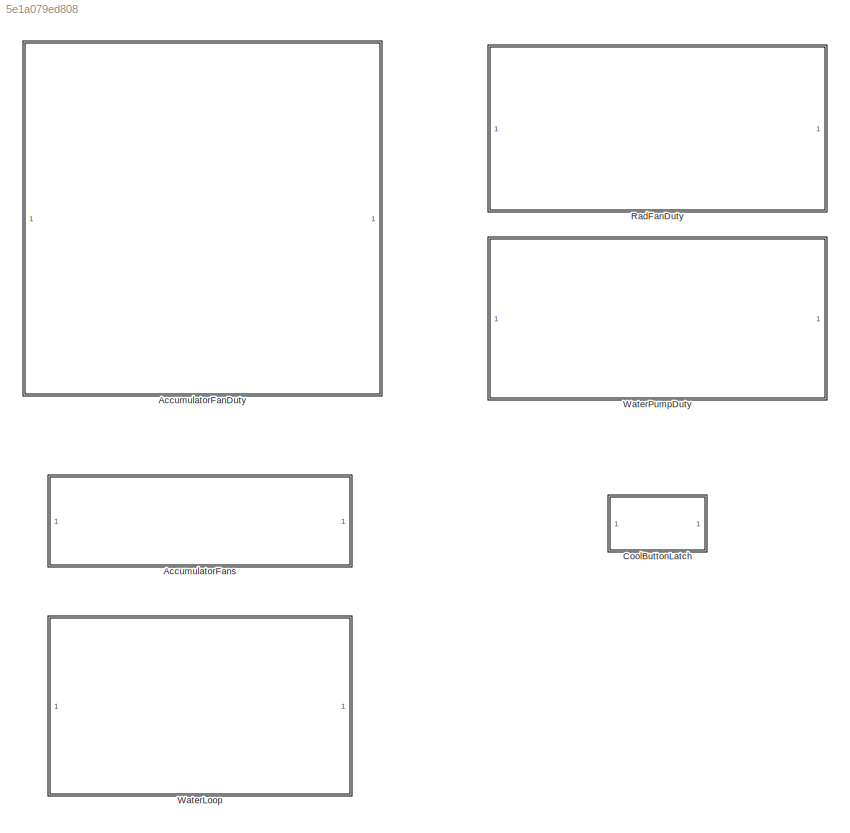
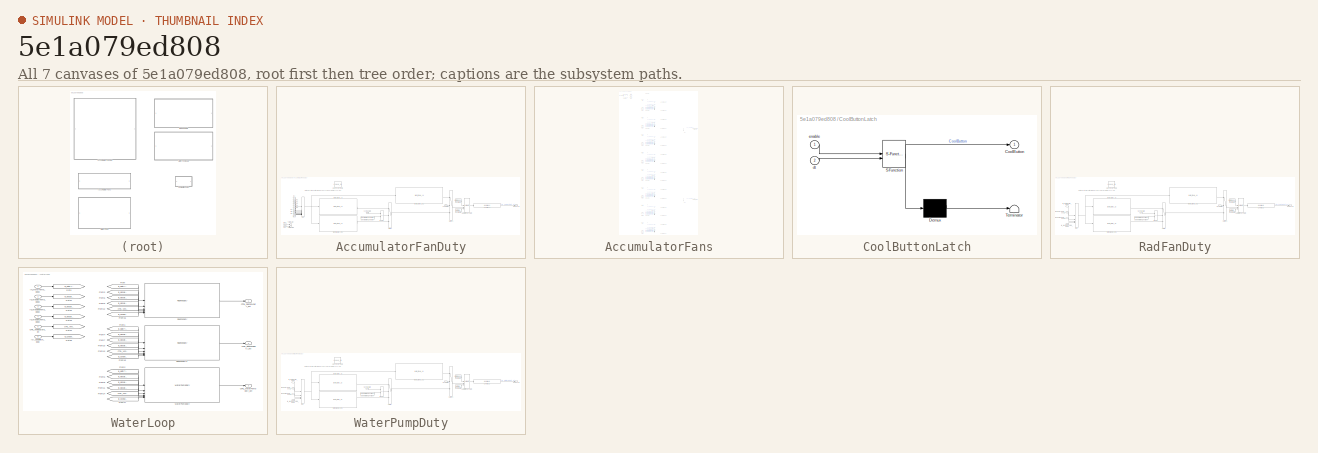
[diagram: thumbnail index - all 7 canvases of the model, root first then tree order]
MODEL slx_5e1a079ed808
KIND library
CONFIG AbsTol = auto
CONFIG EnableMultiTasking = off
CONFIG FixedStep = auto
CONFIG MaxStep = auto
CONFIG MinStep = auto
CONFIG RelTol = 1e-3
CONFIG SampleTimeConstraint = Unconstrained
CONFIG SolverName = VariableStepAuto
CONFIG StartTime = 0.0
CONFIG StopTime = 10.0
BLOCK [SubSystem] AccumulatorFanDuty
BLOCK [Lookup_n-D] AccumulatorFanDuty/1-D Lookup Table
  BreakpointsForDimension1 = [0:100]
  Commented = on
  InputPortMap = u0
  InternalRulePriority = Speed
  NumberOfTableDimensions = 1
  RndMeth = Simplest
  Table = min(((tanh(([0:100]-40)/20)*50+50).^1.03),100)
BLOCK [Constant] AccumulatorFanDuty/Constant
  Value = uint8(100)
BLOCK [Constant] AccumulatorFanDuty/Constant1
  Value = uint8(0)
BLOCK [Inport] AccumulatorFanDuty/CoolSwitch
  Port = 14
BLOCK [Outport] AccumulatorFanDuty/DutyCycle
BLOCK [Reference] AccumulatorFanDuty/Enumerated Constant  REF=simulink/Sources/Enumerated
Constant
  SourceBlock = simulink/Sources/Enumerated\nConstant
  SourceType = Enumerated Constant
BLOCK [RelationalOperator] AccumulatorFanDuty/Equal
  InputSameDT = off
  Operator = ==
  OutDataTypeStr = boolean
  RndMeth = Simplest
BLOCK [Inport] AccumulatorFanDuty/In1
BLOCK [Inport] AccumulatorFanDuty/In10
  Port = 10
BLOCK [Inport] AccumulatorFanDuty/In11
  Port = 11
BLOCK [Inport] AccumulatorFanDuty/In12
  Port = 12
BLOCK [Inport] AccumulatorFanDuty/In2
  Port = 2
BLOCK [Inport] AccumulatorFanDuty/In3
  Port = 3
BLOCK [Inport] AccumulatorFanDuty/In4
  Port = 4
BLOCK [Inport] AccumulatorFanDuty/In5
  Port = 5
BLOCK [Inport] AccumulatorFanDuty/In6
  Port = 6
BLOCK [Inport] AccumulatorFanDuty/In7
  Port = 7
BLOCK [Inport] AccumulatorFanDuty/In8
  Port = 8
BLOCK [Inport] AccumulatorFanDuty/In9
  Port = 9
BLOCK [MinMax] AccumulatorFanDuty/Max
  Function = max
  Inputs = 10
BLOCK [Reference] AccumulatorFanDuty/OverMeas  REF=Utilities/OverMeas
  SourceBlock = Utilities/OverMeas
BLOCK [Reference] AccumulatorFanDuty/Saturation Dynamic  REF=simulink/Discontinuities/Saturation
Dynamic
  SourceBlock = simulink/Discontinuities/Saturation\nDynamic
  SourceType = Saturation Dynamic
BLOCK [Switch] AccumulatorFanDuty/Switch
  Criteria = u2 ~= 0
  InputSameDT = off
  SaturateOnIntegerOverflow = off
BLOCK [Switch] AccumulatorFanDuty/Switch1
  Criteria = u2 ~= 0
  InputSameDT = off
  SaturateOnIntegerOverflow = off
BLOCK [Terminator] AccumulatorFanDuty/Terminator
BLOCK [Terminator] AccumulatorFanDuty/Terminator1
BLOCK [Inport] AccumulatorFanDuty/VehicleState
  Port = 13
BLOCK [Reference] AccumulatorFanDuty/raptor_table_1d  REF=Raptor_lib/Table Lookup/raptor_table_1d
  SourceBlock = Raptor_lib/Table Lookup/raptor_table_1d
  SourceProductName = Raptor
  SourceType = Table 1d
BLOCK [Reference] AccumulatorFanDuty/raptor_table_1d1  REF=Raptor_lib/Table Lookup/raptor_table_1d
  SourceBlock = Raptor_lib/Table Lookup/raptor_table_1d
  SourceProductName = Raptor
  SourceType = Table 1d
BLOCK [Reference] AccumulatorFanDuty/raptor_table_1d2  REF=Raptor_lib/Table Lookup/raptor_table_1d
  SourceBlock = Raptor_lib/Table Lookup/raptor_table_1d
  SourceProductName = Raptor
  SourceType = Table 1d
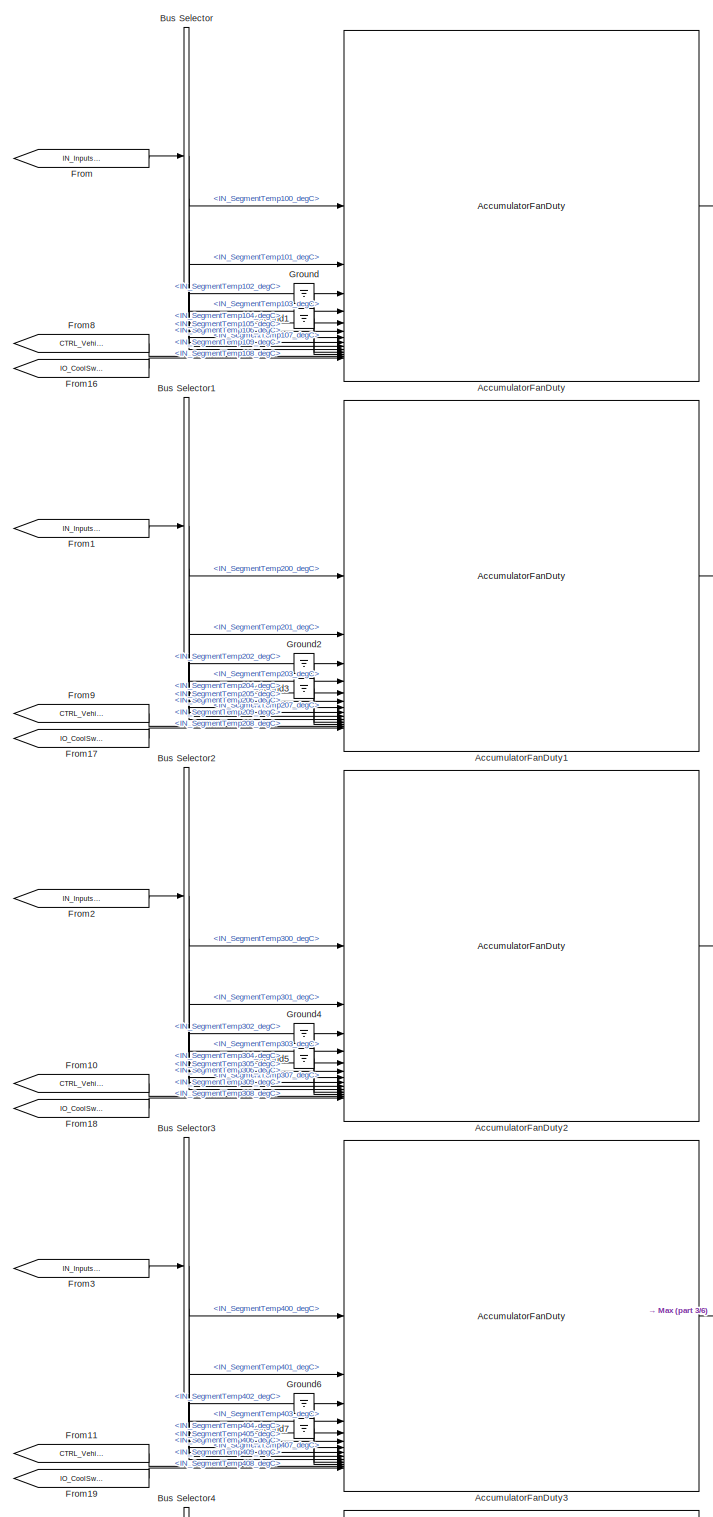
[diagram: AccumulatorFans - part 1/6, top center region]
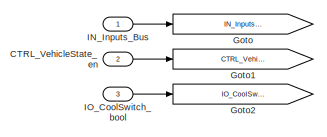
[diagram: AccumulatorFans - part 2/6, top left region]
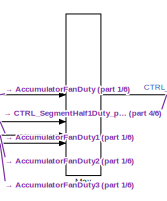
[diagram: AccumulatorFans - part 3/6, top right region]
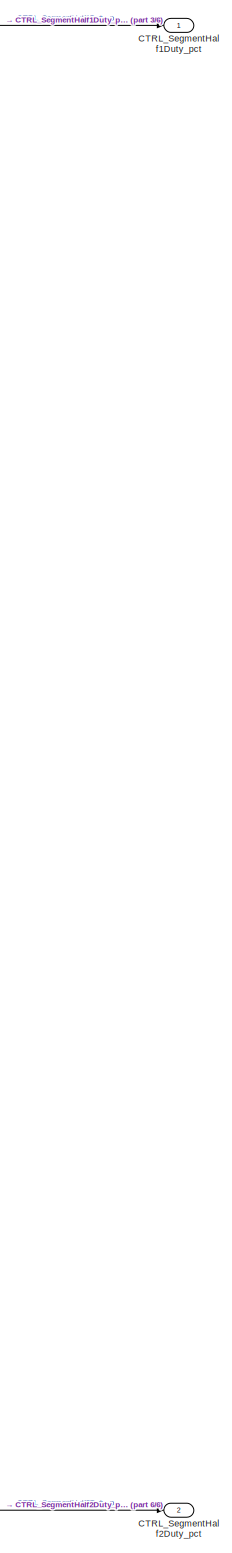
[diagram: AccumulatorFans - part 4/6, middle right region]
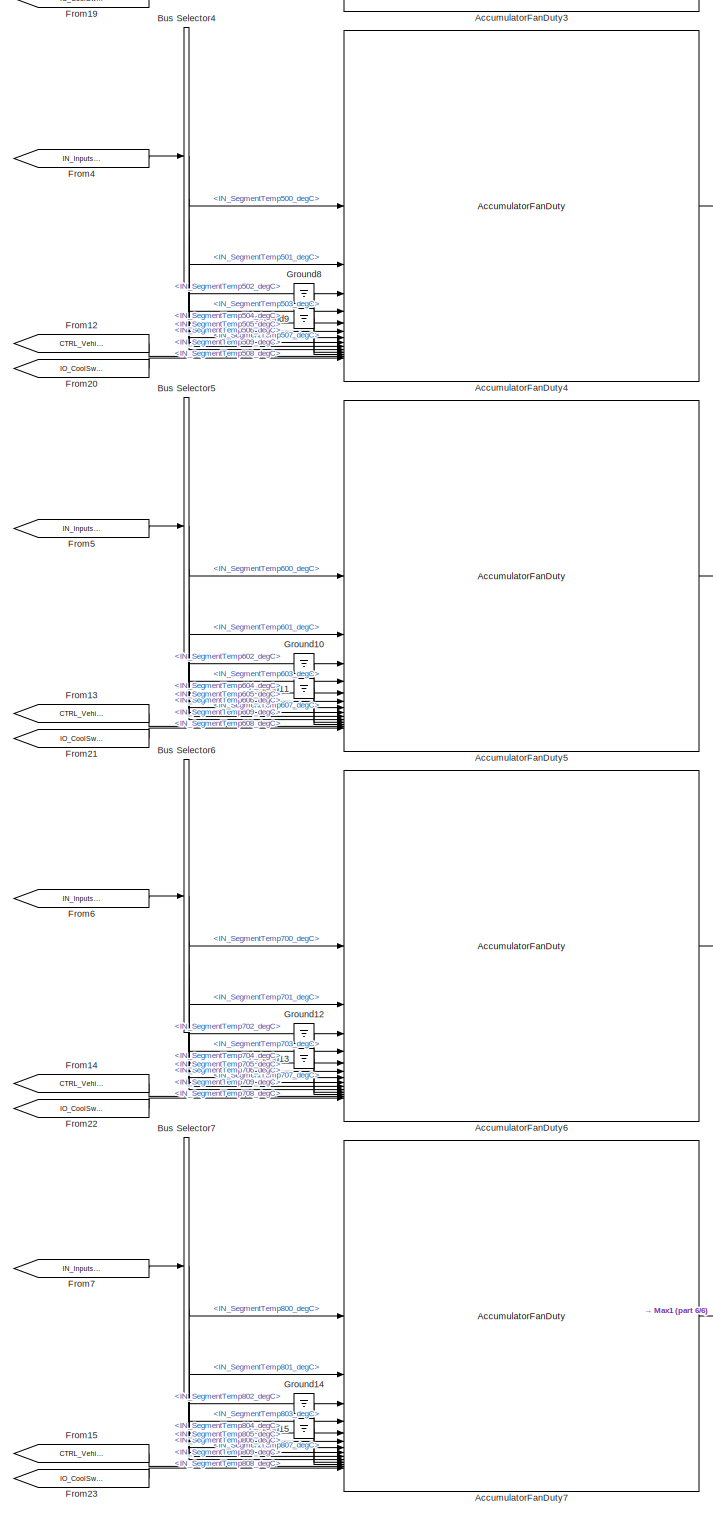
[diagram: AccumulatorFans - part 5/6, bottom center region]
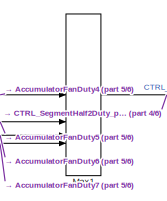
[diagram: AccumulatorFans - part 6/6, bottom right region]
BLOCK [SubSystem] AccumulatorFans
BLOCK [Reference] AccumulatorFans/AccumulatorFanDuty  REF=$bdroot/AccumulatorFanDuty
  SourceBlock = $bdroot/AccumulatorFanDuty
BLOCK [Reference] AccumulatorFans/AccumulatorFanDuty1  REF=$bdroot/AccumulatorFanDuty
  SourceBlock = $bdroot/AccumulatorFanDuty
BLOCK [Reference] AccumulatorFans/AccumulatorFanDuty2  REF=$bdroot/AccumulatorFanDuty
  SourceBlock = $bdroot/AccumulatorFanDuty
BLOCK [Reference] AccumulatorFans/AccumulatorFanDuty3  REF=$bdroot/AccumulatorFanDuty
  SourceBlock = $bdroot/AccumulatorFanDuty
BLOCK [Reference] AccumulatorFans/AccumulatorFanDuty4  REF=$bdroot/AccumulatorFanDuty
  SourceBlock = $bdroot/AccumulatorFanDuty
BLOCK [Reference] AccumulatorFans/AccumulatorFanDuty5  REF=$bdroot/AccumulatorFanDuty
  SourceBlock = $bdroot/AccumulatorFanDuty
BLOCK [Reference] AccumulatorFans/AccumulatorFanDuty6  REF=$bdroot/AccumulatorFanDuty
  SourceBlock = $bdroot/AccumulatorFanDuty
BLOCK [Reference] AccumulatorFans/AccumulatorFanDuty7  REF=$bdroot/AccumulatorFanDuty
  SourceBlock = $bdroot/AccumulatorFanDuty
BLOCK [BusSelector] AccumulatorFans/Bus Selector
  OutputSignals = IN_STMM_Bus.IN_Segment1Temp_Bus.IN_SegmentTemp100_degC,IN_STMM_Bus.IN_Segment1Temp_Bus.IN_SegmentTemp101_degC,IN_STMM_Bus.IN_Segment1Temp_Bus.IN_SegmentTemp102_degC,IN_STMM_Bus.IN_Segment1Temp_Bus.IN_SegmentTemp103_degC,IN_STMM_Bus.IN_Segment1Temp_Bus.IN_SegmentTemp104_degC,IN_STMM_Bus.IN_Segment1Temp_Bus.IN_SegmentTemp105_degC,IN_STMM_Bus.IN_Segment1Temp_Bus.IN_SegmentTemp106_degC,IN_STMM_Bus.IN_...<+149ch>
BLOCK [BusSelector] AccumulatorFans/Bus Selector1
  OutputSignals = IN_STMM_Bus.IN_Segment2Temp_Bus.IN_SegmentTemp200_degC,IN_STMM_Bus.IN_Segment2Temp_Bus.IN_SegmentTemp201_degC,IN_STMM_Bus.IN_Segment2Temp_Bus.IN_SegmentTemp202_degC,IN_STMM_Bus.IN_Segment2Temp_Bus.IN_SegmentTemp203_degC,IN_STMM_Bus.IN_Segment2Temp_Bus.IN_SegmentTemp204_degC,IN_STMM_Bus.IN_Segment2Temp_Bus.IN_SegmentTemp205_degC,IN_STMM_Bus.IN_Segment2Temp_Bus.IN_SegmentTemp206_degC,IN_STMM_Bus.IN_...<+149ch>
BLOCK [BusSelector] AccumulatorFans/Bus Selector2
  OutputSignals = IN_STMM_Bus.IN_Segment3Temp_Bus.IN_SegmentTemp300_degC,IN_STMM_Bus.IN_Segment3Temp_Bus.IN_SegmentTemp301_degC,IN_STMM_Bus.IN_Segment3Temp_Bus.IN_SegmentTemp302_degC,IN_STMM_Bus.IN_Segment3Temp_Bus.IN_SegmentTemp303_degC,IN_STMM_Bus.IN_Segment3Temp_Bus.IN_SegmentTemp304_degC,IN_STMM_Bus.IN_Segment3Temp_Bus.IN_SegmentTemp305_degC,IN_STMM_Bus.IN_Segment3Temp_Bus.IN_SegmentTemp306_degC,IN_STMM_Bus.IN_...<+149ch>
BLOCK [BusSelector] AccumulatorFans/Bus Selector3
  OutputSignals = IN_STMM_Bus.IN_Segment4Temp_Bus.IN_SegmentTemp400_degC,IN_STMM_Bus.IN_Segment4Temp_Bus.IN_SegmentTemp401_degC,IN_STMM_Bus.IN_Segment4Temp_Bus.IN_SegmentTemp402_degC,IN_STMM_Bus.IN_Segment4Temp_Bus.IN_SegmentTemp403_degC,IN_STMM_Bus.IN_Segment4Temp_Bus.IN_SegmentTemp404_degC,IN_STMM_Bus.IN_Segment4Temp_Bus.IN_SegmentTemp405_degC,IN_STMM_Bus.IN_Segment4Temp_Bus.IN_SegmentTemp406_degC,IN_STMM_Bus.IN_...<+149ch>
BLOCK [BusSelector] AccumulatorFans/Bus Selector4
  OutputSignals = IN_STMM_Bus.IN_Segment5Temp_Bus.IN_SegmentTemp500_degC,IN_STMM_Bus.IN_Segment5Temp_Bus.IN_SegmentTemp501_degC,IN_STMM_Bus.IN_Segment5Temp_Bus.IN_SegmentTemp502_degC,IN_STMM_Bus.IN_Segment5Temp_Bus.IN_SegmentTemp503_degC,IN_STMM_Bus.IN_Segment5Temp_Bus.IN_SegmentTemp504_degC,IN_STMM_Bus.IN_Segment5Temp_Bus.IN_SegmentTemp505_degC,IN_STMM_Bus.IN_Segment5Temp_Bus.IN_SegmentTemp506_degC,IN_STMM_Bus.IN_...<+149ch>
BLOCK [BusSelector] AccumulatorFans/Bus Selector5
  OutputSignals = IN_STMM_Bus.IN_Segment6Temp_Bus.IN_SegmentTemp600_degC,IN_STMM_Bus.IN_Segment6Temp_Bus.IN_SegmentTemp601_degC,IN_STMM_Bus.IN_Segment6Temp_Bus.IN_SegmentTemp602_degC,IN_STMM_Bus.IN_Segment6Temp_Bus.IN_SegmentTemp603_degC,IN_STMM_Bus.IN_Segment6Temp_Bus.IN_SegmentTemp604_degC,IN_STMM_Bus.IN_Segment6Temp_Bus.IN_SegmentTemp605_degC,IN_STMM_Bus.IN_Segment6Temp_Bus.IN_SegmentTemp606_degC,IN_STMM_Bus.IN_...<+149ch>
BLOCK [BusSelector] AccumulatorFans/Bus Selector6
  OutputSignals = IN_STMM_Bus.IN_Segment7Temp_Bus.IN_SegmentTemp700_degC,IN_STMM_Bus.IN_Segment7Temp_Bus.IN_SegmentTemp701_degC,IN_STMM_Bus.IN_Segment7Temp_Bus.IN_SegmentTemp702_degC,IN_STMM_Bus.IN_Segment7Temp_Bus.IN_SegmentTemp703_degC,IN_STMM_Bus.IN_Segment7Temp_Bus.IN_SegmentTemp704_degC,IN_STMM_Bus.IN_Segment7Temp_Bus.IN_SegmentTemp705_degC,IN_STMM_Bus.IN_Segment7Temp_Bus.IN_SegmentTemp706_degC,IN_STMM_Bus.IN_...<+149ch>
BLOCK [BusSelector] AccumulatorFans/Bus Selector7
  OutputSignals = IN_STMM_Bus.IN_Segment8Temp_Bus.IN_SegmentTemp800_degC,IN_STMM_Bus.IN_Segment8Temp_Bus.IN_SegmentTemp801_degC,IN_STMM_Bus.IN_Segment8Temp_Bus.IN_SegmentTemp802_degC,IN_STMM_Bus.IN_Segment8Temp_Bus.IN_SegmentTemp803_degC,IN_STMM_Bus.IN_Segment8Temp_Bus.IN_SegmentTemp804_degC,IN_STMM_Bus.IN_Segment8Temp_Bus.IN_SegmentTemp805_degC,IN_STMM_Bus.IN_Segment8Temp_Bus.IN_SegmentTemp806_degC,IN_STMM_Bus.IN_...<+149ch>
BLOCK [Outport] AccumulatorFans/CTRL_SegmentHalf1Duty_pct
BLOCK [Outport] AccumulatorFans/CTRL_SegmentHalf2Duty_pct
  Port = 2
BLOCK [Inport] AccumulatorFans/CTRL_VehicleState_en
  Port = 2
BLOCK [From] AccumulatorFans/From
  GotoTag = IN_Inputs_Bus
BLOCK [From] AccumulatorFans/From1
  GotoTag = IN_Inputs_Bus
BLOCK [From] AccumulatorFans/From10
  GotoTag = CTRL_VehicleState_en
BLOCK [From] AccumulatorFans/From11
  GotoTag = CTRL_VehicleState_en
BLOCK [From] AccumulatorFans/From12
  GotoTag = CTRL_VehicleState_en
BLOCK [From] AccumulatorFans/From13
  GotoTag = CTRL_VehicleState_en
BLOCK [From] AccumulatorFans/From14
  GotoTag = CTRL_VehicleState_en
BLOCK [From] AccumulatorFans/From15
  GotoTag = CTRL_VehicleState_en
BLOCK [From] AccumulatorFans/From16
  GotoTag = IO_CoolSwitch_bool
BLOCK [From] AccumulatorFans/From17
  GotoTag = IO_CoolSwitch_bool
BLOCK [From] AccumulatorFans/From18
  GotoTag = IO_CoolSwitch_bool
BLOCK [From] AccumulatorFans/From19
  GotoTag = IO_CoolSwitch_bool
BLOCK [From] AccumulatorFans/From2
  GotoTag = IN_Inputs_Bus
BLOCK [From] AccumulatorFans/From20
  GotoTag = IO_CoolSwitch_bool
BLOCK [From] AccumulatorFans/From21
  GotoTag = IO_CoolSwitch_bool
BLOCK [From] AccumulatorFans/From22
  GotoTag = IO_CoolSwitch_bool
BLOCK [From] AccumulatorFans/From23
  GotoTag = IO_CoolSwitch_bool
BLOCK [From] AccumulatorFans/From3
  GotoTag = IN_Inputs_Bus
BLOCK [From] AccumulatorFans/From4
  GotoTag = IN_Inputs_Bus
BLOCK [From] AccumulatorFans/From5
  GotoTag = IN_Inputs_Bus
BLOCK [From] AccumulatorFans/From6
  GotoTag = IN_Inputs_Bus
BLOCK [From] AccumulatorFans/From7
  GotoTag = IN_Inputs_Bus
BLOCK [From] AccumulatorFans/From8
  GotoTag = CTRL_VehicleState_en
BLOCK [From] AccumulatorFans/From9
  GotoTag = CTRL_VehicleState_en
BLOCK [Goto] AccumulatorFans/Goto
  GotoTag = IN_Inputs_Bus
BLOCK [Goto] AccumulatorFans/Goto1
  GotoTag = CTRL_VehicleState_en
BLOCK [Goto] AccumulatorFans/Goto2
  GotoTag = IO_CoolSwitch_bool
BLOCK [Ground] AccumulatorFans/Ground
BLOCK [Ground] AccumulatorFans/Ground1
BLOCK [Ground] AccumulatorFans/Ground10
BLOCK [Ground] AccumulatorFans/Ground11
BLOCK [Ground] AccumulatorFans/Ground12
BLOCK [Ground] AccumulatorFans/Ground13
BLOCK [Ground] AccumulatorFans/Ground14
BLOCK [Ground] AccumulatorFans/Ground15
BLOCK [Ground] AccumulatorFans/Ground2
BLOCK [Ground] AccumulatorFans/Ground3
BLOCK [Ground] AccumulatorFans/Ground4
BLOCK [Ground] AccumulatorFans/Ground5
BLOCK [Ground] AccumulatorFans/Ground6
BLOCK [Ground] AccumulatorFans/Ground7
BLOCK [Ground] AccumulatorFans/Ground8
BLOCK [Ground] AccumulatorFans/Ground9
BLOCK [Inport] AccumulatorFans/IN_Inputs_Bus
BLOCK [Inport] AccumulatorFans/IO_CoolSwitch_bool
  Port = 3
BLOCK [MinMax] AccumulatorFans/Max
  Function = max
  Inputs = 4
BLOCK [MinMax] AccumulatorFans/Max1
  Function = max
  Inputs = 4
BLOCK [SubSystem] CoolButtonLatch
  ErrorFcn = Stateflow.Translate.translate
  PermitHierarchicalResolution = ExplicitOnly
  SFBlockType = Chart
  TreatAsAtomicUnit = on
BLOCK [Demux] CoolButtonLatch/ Demux 
  Outputs = 1
BLOCK [S-Function] CoolButtonLatch/ SFunction 
  EnableBusSupport = off
  FunctionName = sf_sfun
  PortCounts = [2 2]
  SFcnIsStateOwnerBlock = off
  SFunctionDeploymentMode = off
  Tag = Stateflow S-Function 2
BLOCK [Terminator] CoolButtonLatch/ Terminator 
BLOCK [Outport] CoolButtonLatch/CoolButton
BLOCK [Inport] CoolButtonLatch/dt
  Port = 2
BLOCK [Inport] CoolButtonLatch/enable
BLOCK [SubSystem] RadFanDuty
BLOCK [Lookup_n-D] RadFanDuty/1-D Lookup Table
  BreakpointsForDimension1 = [0; 1; 2; 3; 4; 5; 6; 7; 8; 9; 10; 11; 12; 13; 14; 15; 16; 17; 18; 19; 20; 21; 22; 23; 24; 25; 26; 27; 28; 29; 30; 31; 32; 33; 34; 35; 36; 37; 38; 39; 40; 41; 42; 43; 44; 45; 46; 47; 48; 49; 50; 51; 52; 53; 54; 55; 56; 57; 58; 59; 60; 61; 62; 63; 64; 65; 66; 67; 68; 69; 70; 71; 72; 73; 74; 75; 76; 77; 78; 79; 80; 81; 82; 83; 84; 85; 86; 87; 88; 89; 90; 91; 92; 93; 94; 95; 96; 97; 98; 99; 100; 101;...<+85ch>
  Commented = on
  InputPortMap = u0
  InternalRulePriority = Speed
  NumberOfTableDimensions = 1
  RndMeth = Simplest
  Table = [2, 2, 2, 2, 3, 3, 3, 4, 4, 5, 5, 5, 6, 7, 7, 8, 9, 10, 11, 12, 13, 14, 15, 17, 18, 20, 22, 23, 25, 28, 30, 32, 34, 37, 39, 42, 45, 48, 50, 53, 56, 59, 62, 65, 68, 70, 73, 76, 78, 81, 83, 85, 88, 90, 91, 93, 95, 97, 98, 99, 100, 100, 100, 100, 100, 100, 100, 100, 100, 100, 100, 100, 100, 100, 100, 100, 100, 100, 100, 100, 100, 100, 100, 100, 100, 100, 100, 100, 100, 100, 100, 100, 100, 100, 100, 1...<+118ch>
BLOCK [Constant] RadFanDuty/Constant
  Value = uint8(100)
BLOCK [Constant] RadFanDuty/Constant1
  Value = uint8(0)
BLOCK [Inport] RadFanDuty/CoolSwitch
  Port = 6
BLOCK [Outport] RadFanDuty/DutyCycle
BLOCK [Reference] RadFanDuty/Enumerated Constant  REF=simulink/Sources/Enumerated
Constant
  SourceBlock = simulink/Sources/Enumerated\nConstant
  SourceType = Enumerated Constant
BLOCK [RelationalOperator] RadFanDuty/Equal
  InputSameDT = off
  Operator = ==
  OutDataTypeStr = boolean
  RndMeth = Simplest
BLOCK [Inport] RadFanDuty/IN_ModuleATemp_degC
  Port = 2
BLOCK [Inport] RadFanDuty/IN_ModuleBTemp_degC
  Port = 3
BLOCK [Inport] RadFanDuty/IN_ModuleCTemp_degC
  Port = 4
BLOCK [Inport] RadFanDuty/IN_MotorTemp_degC
BLOCK [MinMax] RadFanDuty/Max
  Function = max
  Inputs = 4
BLOCK [Reference] RadFanDuty/OverMeas  REF=Utilities/OverMeas
  SourceBlock = Utilities/OverMeas
BLOCK [Reference] RadFanDuty/Saturation Dynamic  REF=simulink/Discontinuities/Saturation
Dynamic
  SourceBlock = simulink/Discontinuities/Saturation\nDynamic
  SourceType = Saturation Dynamic
BLOCK [Switch] RadFanDuty/Switch
  Criteria = u2 ~= 0
  InputSameDT = off
  SaturateOnIntegerOverflow = off
BLOCK [Switch] RadFanDuty/Switch1
  Criteria = u2 ~= 0
  InputSameDT = off
  SaturateOnIntegerOverflow = off
BLOCK [Inport] RadFanDuty/VehicleState
  Port = 5
BLOCK [Reference] RadFanDuty/raptor_table_1d  REF=Raptor_lib/Table Lookup/raptor_table_1d
  SourceBlock = Raptor_lib/Table Lookup/raptor_table_1d
  SourceProductName = Raptor
  SourceType = Table 1d
BLOCK [Reference] RadFanDuty/raptor_table_1d1  REF=Raptor_lib/Table Lookup/raptor_table_1d
  SourceBlock = Raptor_lib/Table Lookup/raptor_table_1d
  SourceProductName = Raptor
  SourceType = Table 1d
BLOCK [Reference] RadFanDuty/raptor_table_1d2  REF=Raptor_lib/Table Lookup/raptor_table_1d
  SourceBlock = Raptor_lib/Table Lookup/raptor_table_1d
  SourceProductName = Raptor
  SourceType = Table 1d
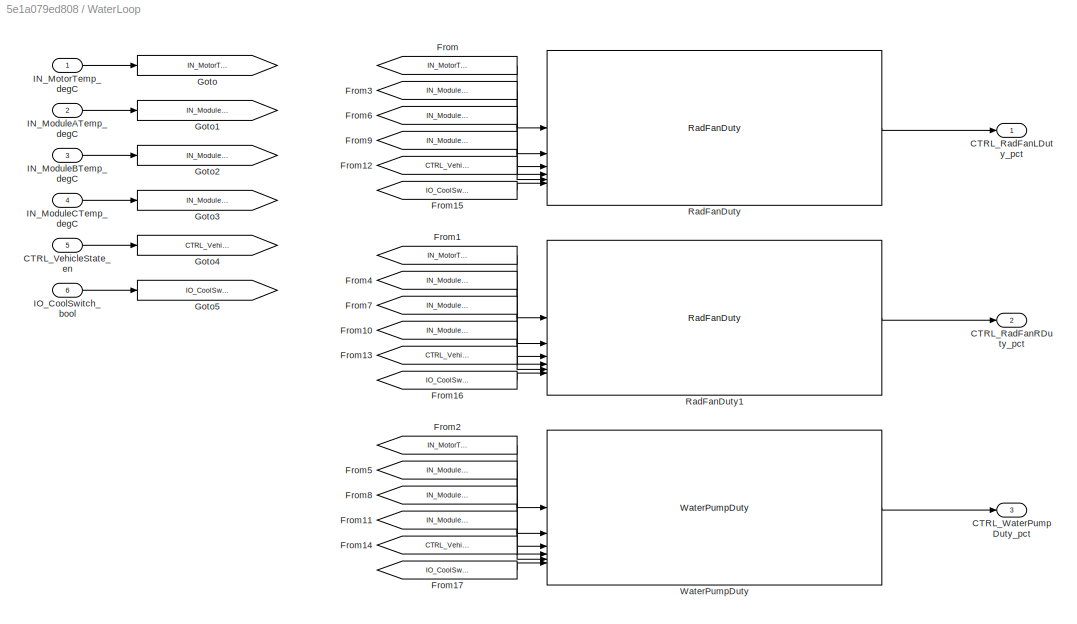
BLOCK [SubSystem] WaterLoop
BLOCK [Outport] WaterLoop/CTRL_RadFanLDuty_pct
BLOCK [Outport] WaterLoop/CTRL_RadFanRDuty_pct
  Port = 2
BLOCK [Inport] WaterLoop/CTRL_VehicleState_en
  Port = 5
BLOCK [Outport] WaterLoop/CTRL_WaterPumpDuty_pct
  Port = 3
BLOCK [From] WaterLoop/From
  GotoTag = IN_MotorTemp_degC
BLOCK [From] WaterLoop/From1
  GotoTag = IN_MotorTemp_degC
BLOCK [From] WaterLoop/From10
  GotoTag = IN_ModuleCTemp_degC
BLOCK [From] WaterLoop/From11
  GotoTag = IN_ModuleCTemp_degC
BLOCK [From] WaterLoop/From12
  GotoTag = CTRL_VehicleState_en
BLOCK [From] WaterLoop/From13
  GotoTag = CTRL_VehicleState_en
BLOCK [From] WaterLoop/From14
  GotoTag = CTRL_VehicleState_en
BLOCK [From] WaterLoop/From15
  GotoTag = IO_CoolSwitch_bool
BLOCK [From] WaterLoop/From16
  GotoTag = IO_CoolSwitch_bool
BLOCK [From] WaterLoop/From17
  GotoTag = IO_CoolSwitch_bool
BLOCK [From] WaterLoop/From2
  GotoTag = IN_MotorTemp_degC
BLOCK [From] WaterLoop/From3
  GotoTag = IN_ModuleATemp_degC
BLOCK [From] WaterLoop/From4
  GotoTag = IN_ModuleATemp_degC
BLOCK [From] WaterLoop/From5
  GotoTag = IN_ModuleATemp_degC
BLOCK [From] WaterLoop/From6
  GotoTag = IN_ModuleBTemp_degC
BLOCK [From] WaterLoop/From7
  GotoTag = IN_ModuleBTemp_degC
BLOCK [From] WaterLoop/From8
  GotoTag = IN_ModuleBTemp_degC
BLOCK [From] WaterLoop/From9
  GotoTag = IN_ModuleCTemp_degC
BLOCK [Goto] WaterLoop/Goto
  GotoTag = IN_MotorTemp_degC
BLOCK [Goto] WaterLoop/Goto1
  GotoTag = IN_ModuleATemp_degC
BLOCK [Goto] WaterLoop/Goto2
  GotoTag = IN_ModuleBTemp_degC
BLOCK [Goto] WaterLoop/Goto3
  GotoTag = IN_ModuleCTemp_degC
BLOCK [Goto] WaterLoop/Goto4
  GotoTag = CTRL_VehicleState_en
BLOCK [Goto] WaterLoop/Goto5
  GotoTag = IO_CoolSwitch_bool
BLOCK [Inport] WaterLoop/IN_ModuleATemp_degC
  Port = 2
BLOCK [Inport] WaterLoop/IN_ModuleBTemp_degC
  Port = 3
BLOCK [Inport] WaterLoop/IN_ModuleCTemp_degC
  Port = 4
BLOCK [Inport] WaterLoop/IN_MotorTemp_degC
BLOCK [Inport] WaterLoop/IO_CoolSwitch_bool
  Port = 6
BLOCK [Reference] WaterLoop/RadFanDuty  REF=$bdroot/RadFanDuty
  SourceBlock = $bdroot/RadFanDuty
BLOCK [Reference] WaterLoop/RadFanDuty1  REF=$bdroot/RadFanDuty
  SourceBlock = $bdroot/RadFanDuty
BLOCK [Reference] WaterLoop/WaterPumpDuty  REF=$bdroot/WaterPumpDuty
  SourceBlock = $bdroot/WaterPumpDuty
BLOCK [SubSystem] WaterPumpDuty
BLOCK [Lookup_n-D] WaterPumpDuty/1-D Lookup Table
  BreakpointsForDimension1 = [0; 1; 2; 3; 4; 5; 6; 7; 8; 9; 10; 11; 12; 13; 14; 15; 16; 17; 18; 19; 20; 21; 22; 23; 24; 25; 26; 27; 28; 29; 30; 31; 32; 33; 34; 35; 36; 37; 38; 39; 40; 41; 42; 43; 44; 45; 46; 47; 48; 49; 50; 51; 52; 53; 54; 55; 56; 57; 58; 59; 60; 61; 62; 63; 64; 65; 66; 67; 68; 69; 70; 71; 72; 73; 74; 75; 76; 77; 78; 79; 80; 81; 82; 83; 84; 85; 86; 87; 88; 89; 90; 91; 92; 93; 94; 95; 96; 97; 98; 99; 100; 101;...<+85ch>
  Commented = on
  InputPortMap = u0
  InternalRulePriority = Speed
  NumberOfTableDimensions = 1
  RndMeth = Simplest
  Table = [20, 20, 20, 20, 20, 20, 20, 20, 20, 20, 20, 20, 20, 20, 20, 20, 20, 20, 20, 20, 20, 20, 20, 20, 20, 20, 20, 20, 20, 20, 20, 20, 20, 20, 20, 20, 20, 20, 20, 20, 20, 20, 20, 20, 20, 20, 20, 20, 20, 20, 20, 20, 20, 20, 20, 20, 20, 20, 20, 20, 20, 20, 20, 20, 20, 20, 20, 20, 20, 20, 20, 20, 20, 20, 20, 20, 20, 20, 20, 20, 20, 20, 20, 20, 20, 20, 20, 20, 20, 20, 20, 20, 20, 20, 20, 20, 20, 20, 20, 20,...<+76ch>
BLOCK [Constant] WaterPumpDuty/Constant
  Value = uint8(100)
BLOCK [Constant] WaterPumpDuty/Constant1
  Value = uint8(0)
BLOCK [Inport] WaterPumpDuty/CoolSwitch
  Port = 6
BLOCK [Outport] WaterPumpDuty/DutyCycle
BLOCK [Reference] WaterPumpDuty/Enumerated Constant  REF=simulink/Sources/Enumerated
Constant
  SourceBlock = simulink/Sources/Enumerated\nConstant
  SourceType = Enumerated Constant
BLOCK [RelationalOperator] WaterPumpDuty/Equal
  InputSameDT = off
  Operator = ==
  OutDataTypeStr = boolean
  RndMeth = Simplest
BLOCK [Inport] WaterPumpDuty/IN_ModuleATemp_degC
  Port = 2
BLOCK [Inport] WaterPumpDuty/IN_ModuleBTemp_degC
  Port = 3
BLOCK [Inport] WaterPumpDuty/IN_ModuleCTemp_degC
  Port = 4
BLOCK [Inport] WaterPumpDuty/IN_MotorTemp_degC
BLOCK [MinMax] WaterPumpDuty/Max
  Function = max
  Inputs = 4
BLOCK [Reference] WaterPumpDuty/OverMeas  REF=Utilities/OverMeas
  SourceBlock = Utilities/OverMeas
BLOCK [Reference] WaterPumpDuty/Saturation Dynamic  REF=simulink/Discontinuities/Saturation
Dynamic
  SourceBlock = simulink/Discontinuities/Saturation\nDynamic
  SourceType = Saturation Dynamic
BLOCK [Switch] WaterPumpDuty/Switch
  Criteria = u2 ~= 0
  InputSameDT = off
  SaturateOnIntegerOverflow = off
BLOCK [Switch] WaterPumpDuty/Switch1
  Criteria = u2 ~= 0
  InputSameDT = off
  SaturateOnIntegerOverflow = off
BLOCK [Inport] WaterPumpDuty/VehicleState
  Port = 5
BLOCK [Reference] WaterPumpDuty/raptor_table_1d  REF=Raptor_lib/Table Lookup/raptor_table_1d
  SourceBlock = Raptor_lib/Table Lookup/raptor_table_1d
  SourceProductName = Raptor
  SourceType = Table 1d
BLOCK [Reference] WaterPumpDuty/raptor_table_1d1  REF=Raptor_lib/Table Lookup/raptor_table_1d
  SourceBlock = Raptor_lib/Table Lookup/raptor_table_1d
  SourceProductName = Raptor
  SourceType = Table 1d
BLOCK [Reference] WaterPumpDuty/raptor_table_1d2  REF=Raptor_lib/Table Lookup/raptor_table_1d
  SourceBlock = Raptor_lib/Table Lookup/raptor_table_1d
  SourceProductName = Raptor
  SourceType = Table 1d
ANNOTATION AccumulatorFanDuty: matlab function link: https://www.desmos.com/calculator/g1xooy7f3b
ANNOTATION RadFanDuty: matlab function link: https://www.desmos.com/calculator/g1xooy7f3b
ANNOTATION WaterPumpDuty: matlab function link: https://www.desmos.com/calculator/g1xooy7f3b
LINE AccumulatorFanDuty/Constant1:1 -> AccumulatorFanDuty/Saturation Dynamic:3
LINE AccumulatorFanDuty/Constant:1 -> AccumulatorFanDuty/Saturation Dynamic:1
LINE AccumulatorFanDuty/CoolSwitch:1 -> AccumulatorFanDuty/Switch1:2
LINE AccumulatorFanDuty/Enumerated Constant:1 -> AccumulatorFanDuty/Equal:2
LINE AccumulatorFanDuty/Equal:1 -> AccumulatorFanDuty/Switch:2
LINE AccumulatorFanDuty/In10:1 -> AccumulatorFanDuty/Max:10
LINE AccumulatorFanDuty/In11:1 -> AccumulatorFanDuty/Terminator:1
LINE AccumulatorFanDuty/In12:1 -> AccumulatorFanDuty/Terminator1:1
LINE AccumulatorFanDuty/In1:1 -> AccumulatorFanDuty/Max:1
LINE AccumulatorFanDuty/In2:1 -> AccumulatorFanDuty/Max:2
LINE AccumulatorFanDuty/In3:1 -> AccumulatorFanDuty/Max:3
LINE AccumulatorFanDuty/In4:1 -> AccumulatorFanDuty/Max:4
LINE AccumulatorFanDuty/In5:1 -> AccumulatorFanDuty/Max:5
LINE AccumulatorFanDuty/In6:1 -> AccumulatorFanDuty/Max:6
LINE AccumulatorFanDuty/In7:1 -> AccumulatorFanDuty/Max:7
LINE AccumulatorFanDuty/In8:1 -> AccumulatorFanDuty/Max:8
LINE AccumulatorFanDuty/In9:1 -> AccumulatorFanDuty/Max:9
NET AccumulatorFanDuty/Max:1 -> AccumulatorFanDuty/raptor_table_1d1:1, AccumulatorFanDuty/raptor_table_1d2:1, AccumulatorFanDuty/raptor_table_1d:1
LINE AccumulatorFanDuty/OverMeas:1 -> AccumulatorFanDuty/DutyCycle:1
LINE AccumulatorFanDuty/Saturation Dynamic:1 -> AccumulatorFanDuty/OverMeas:1
LINE AccumulatorFanDuty/Switch1:1 -> AccumulatorFanDuty/Saturation Dynamic:2
LINE AccumulatorFanDuty/Switch:1 -> AccumulatorFanDuty/Switch1:3
LINE AccumulatorFanDuty/VehicleState:1 -> AccumulatorFanDuty/Equal:1
LINE AccumulatorFanDuty/raptor_table_1d1:1 -> AccumulatorFanDuty/Switch:3
LINE AccumulatorFanDuty/raptor_table_1d2:1 -> AccumulatorFanDuty/Switch1:1
LINE AccumulatorFanDuty/raptor_table_1d:1 -> AccumulatorFanDuty/Switch:1
LINE AccumulatorFans/AccumulatorFanDuty1:1 -> AccumulatorFans/Max:2
LINE AccumulatorFans/AccumulatorFanDuty2:1 -> AccumulatorFans/Max:3
LINE AccumulatorFans/AccumulatorFanDuty3:1 -> AccumulatorFans/Max:4
LINE AccumulatorFans/AccumulatorFanDuty4:1 -> AccumulatorFans/Max1:1
LINE AccumulatorFans/AccumulatorFanDuty5:1 -> AccumulatorFans/Max1:2
LINE AccumulatorFans/AccumulatorFanDuty6:1 -> AccumulatorFans/Max1:3
LINE AccumulatorFans/AccumulatorFanDuty7:1 -> AccumulatorFans/Max1:4
LINE AccumulatorFans/AccumulatorFanDuty:1 -> AccumulatorFans/Max:1
LINE AccumulatorFans/Bus Selector1:1 -> AccumulatorFans/AccumulatorFanDuty1:1
LINE AccumulatorFans/Bus Selector1:10 -> AccumulatorFans/AccumulatorFanDuty1:10
LINE AccumulatorFans/Bus Selector1:2 -> AccumulatorFans/AccumulatorFanDuty1:2
LINE AccumulatorFans/Bus Selector1:3 -> AccumulatorFans/AccumulatorFanDuty1:3
LINE AccumulatorFans/Bus Selector1:4 -> AccumulatorFans/AccumulatorFanDuty1:4
LINE AccumulatorFans/Bus Selector1:5 -> AccumulatorFans/AccumulatorFanDuty1:5
LINE AccumulatorFans/Bus Selector1:6 -> AccumulatorFans/AccumulatorFanDuty1:6
LINE AccumulatorFans/Bus Selector1:7 -> AccumulatorFans/AccumulatorFanDuty1:7
LINE AccumulatorFans/Bus Selector1:8 -> AccumulatorFans/AccumulatorFanDuty1:8
LINE AccumulatorFans/Bus Selector1:9 -> AccumulatorFans/AccumulatorFanDuty1:9
LINE AccumulatorFans/Bus Selector2:1 -> AccumulatorFans/AccumulatorFanDuty2:1
LINE AccumulatorFans/Bus Selector2:10 -> AccumulatorFans/AccumulatorFanDuty2:10
LINE AccumulatorFans/Bus Selector2:2 -> AccumulatorFans/AccumulatorFanDuty2:2
LINE AccumulatorFans/Bus Selector2:3 -> AccumulatorFans/AccumulatorFanDuty2:3
LINE AccumulatorFans/Bus Selector2:4 -> AccumulatorFans/AccumulatorFanDuty2:4
LINE AccumulatorFans/Bus Selector2:5 -> AccumulatorFans/AccumulatorFanDuty2:5
LINE AccumulatorFans/Bus Selector2:6 -> AccumulatorFans/AccumulatorFanDuty2:6
LINE AccumulatorFans/Bus Selector2:7 -> AccumulatorFans/AccumulatorFanDuty2:7
LINE AccumulatorFans/Bus Selector2:8 -> AccumulatorFans/AccumulatorFanDuty2:8
LINE AccumulatorFans/Bus Selector2:9 -> AccumulatorFans/AccumulatorFanDuty2:9
LINE AccumulatorFans/Bus Selector3:1 -> AccumulatorFans/AccumulatorFanDuty3:1
LINE AccumulatorFans/Bus Selector3:10 -> AccumulatorFans/AccumulatorFanDuty3:10
LINE AccumulatorFans/Bus Selector3:2 -> AccumulatorFans/AccumulatorFanDuty3:2
LINE AccumulatorFans/Bus Selector3:3 -> AccumulatorFans/AccumulatorFanDuty3:3
LINE AccumulatorFans/Bus Selector3:4 -> AccumulatorFans/AccumulatorFanDuty3:4
LINE AccumulatorFans/Bus Selector3:5 -> AccumulatorFans/AccumulatorFanDuty3:5
LINE AccumulatorFans/Bus Selector3:6 -> AccumulatorFans/AccumulatorFanDuty3:6
LINE AccumulatorFans/Bus Selector3:7 -> AccumulatorFans/AccumulatorFanDuty3:7
LINE AccumulatorFans/Bus Selector3:8 -> AccumulatorFans/AccumulatorFanDuty3:8
LINE AccumulatorFans/Bus Selector3:9 -> AccumulatorFans/AccumulatorFanDuty3:9
LINE AccumulatorFans/Bus Selector4:1 -> AccumulatorFans/AccumulatorFanDuty4:1
LINE AccumulatorFans/Bus Selector4:10 -> AccumulatorFans/AccumulatorFanDuty4:10
LINE AccumulatorFans/Bus Selector4:2 -> AccumulatorFans/AccumulatorFanDuty4:2
LINE AccumulatorFans/Bus Selector4:3 -> AccumulatorFans/AccumulatorFanDuty4:3
LINE AccumulatorFans/Bus Selector4:4 -> AccumulatorFans/AccumulatorFanDuty4:4
LINE AccumulatorFans/Bus Selector4:5 -> AccumulatorFans/AccumulatorFanDuty4:5
LINE AccumulatorFans/Bus Selector4:6 -> AccumulatorFans/AccumulatorFanDuty4:6
LINE AccumulatorFans/Bus Selector4:7 -> AccumulatorFans/AccumulatorFanDuty4:7
LINE AccumulatorFans/Bus Selector4:8 -> AccumulatorFans/AccumulatorFanDuty4:8
LINE AccumulatorFans/Bus Selector4:9 -> AccumulatorFans/AccumulatorFanDuty4:9
LINE AccumulatorFans/Bus Selector5:1 -> AccumulatorFans/AccumulatorFanDuty5:1
LINE AccumulatorFans/Bus Selector5:10 -> AccumulatorFans/AccumulatorFanDuty5:10
LINE AccumulatorFans/Bus Selector5:2 -> AccumulatorFans/AccumulatorFanDuty5:2
LINE AccumulatorFans/Bus Selector5:3 -> AccumulatorFans/AccumulatorFanDuty5:3
LINE AccumulatorFans/Bus Selector5:4 -> AccumulatorFans/AccumulatorFanDuty5:4
LINE AccumulatorFans/Bus Selector5:5 -> AccumulatorFans/AccumulatorFanDuty5:5
LINE AccumulatorFans/Bus Selector5:6 -> AccumulatorFans/AccumulatorFanDuty5:6
LINE AccumulatorFans/Bus Selector5:7 -> AccumulatorFans/AccumulatorFanDuty5:7
LINE AccumulatorFans/Bus Selector5:8 -> AccumulatorFans/AccumulatorFanDuty5:8
LINE AccumulatorFans/Bus Selector5:9 -> AccumulatorFans/AccumulatorFanDuty5:9
LINE AccumulatorFans/Bus Selector6:1 -> AccumulatorFans/AccumulatorFanDuty6:1
LINE AccumulatorFans/Bus Selector6:10 -> AccumulatorFans/AccumulatorFanDuty6:10
LINE AccumulatorFans/Bus Selector6:2 -> AccumulatorFans/AccumulatorFanDuty6:2
LINE AccumulatorFans/Bus Selector6:3 -> AccumulatorFans/AccumulatorFanDuty6:3
LINE AccumulatorFans/Bus Selector6:4 -> AccumulatorFans/AccumulatorFanDuty6:4
LINE AccumulatorFans/Bus Selector6:5 -> AccumulatorFans/AccumulatorFanDuty6:5
LINE AccumulatorFans/Bus Selector6:6 -> AccumulatorFans/AccumulatorFanDuty6:6
LINE AccumulatorFans/Bus Selector6:7 -> AccumulatorFans/AccumulatorFanDuty6:7
LINE AccumulatorFans/Bus Selector6:8 -> AccumulatorFans/AccumulatorFanDuty6:8
LINE AccumulatorFans/Bus Selector6:9 -> AccumulatorFans/AccumulatorFanDuty6:9
LINE AccumulatorFans/Bus Selector7:1 -> AccumulatorFans/AccumulatorFanDuty7:1
LINE AccumulatorFans/Bus Selector7:10 -> AccumulatorFans/AccumulatorFanDuty7:10
LINE AccumulatorFans/Bus Selector7:2 -> AccumulatorFans/AccumulatorFanDuty7:2
LINE AccumulatorFans/Bus Selector7:3 -> AccumulatorFans/AccumulatorFanDuty7:3
LINE AccumulatorFans/Bus Selector7:4 -> AccumulatorFans/AccumulatorFanDuty7:4
LINE AccumulatorFans/Bus Selector7:5 -> AccumulatorFans/AccumulatorFanDuty7:5
LINE AccumulatorFans/Bus Selector7:6 -> AccumulatorFans/AccumulatorFanDuty7:6
LINE AccumulatorFans/Bus Selector7:7 -> AccumulatorFans/AccumulatorFanDuty7:7
LINE AccumulatorFans/Bus Selector7:8 -> AccumulatorFans/AccumulatorFanDuty7:8
LINE AccumulatorFans/Bus Selector7:9 -> AccumulatorFans/AccumulatorFanDuty7:9
LINE AccumulatorFans/Bus Selector:1 -> AccumulatorFans/AccumulatorFanDuty:1
LINE AccumulatorFans/Bus Selector:10 -> AccumulatorFans/AccumulatorFanDuty:10
LINE AccumulatorFans/Bus Selector:2 -> AccumulatorFans/AccumulatorFanDuty:2
LINE AccumulatorFans/Bus Selector:3 -> AccumulatorFans/AccumulatorFanDuty:3
LINE AccumulatorFans/Bus Selector:4 -> AccumulatorFans/AccumulatorFanDuty:4
LINE AccumulatorFans/Bus Selector:5 -> AccumulatorFans/AccumulatorFanDuty:5
LINE AccumulatorFans/Bus Selector:6 -> AccumulatorFans/AccumulatorFanDuty:6
LINE AccumulatorFans/Bus Selector:7 -> AccumulatorFans/AccumulatorFanDuty:7
LINE AccumulatorFans/Bus Selector:8 -> AccumulatorFans/AccumulatorFanDuty:8
LINE AccumulatorFans/Bus Selector:9 -> AccumulatorFans/AccumulatorFanDuty:9
LINE AccumulatorFans/CTRL_VehicleState_en:1 -> AccumulatorFans/Goto1:1
LINE AccumulatorFans/From10:1 -> AccumulatorFans/AccumulatorFanDuty2:13
LINE AccumulatorFans/From11:1 -> AccumulatorFans/AccumulatorFanDuty3:13
LINE AccumulatorFans/From12:1 -> AccumulatorFans/AccumulatorFanDuty4:13
LINE AccumulatorFans/From13:1 -> AccumulatorFans/AccumulatorFanDuty5:13
LINE AccumulatorFans/From14:1 -> AccumulatorFans/AccumulatorFanDuty6:13
LINE AccumulatorFans/From15:1 -> AccumulatorFans/AccumulatorFanDuty7:13
LINE AccumulatorFans/From16:1 -> AccumulatorFans/AccumulatorFanDuty:14
LINE AccumulatorFans/From17:1 -> AccumulatorFans/AccumulatorFanDuty1:14
LINE AccumulatorFans/From18:1 -> AccumulatorFans/AccumulatorFanDuty2:14
LINE AccumulatorFans/From19:1 -> AccumulatorFans/AccumulatorFanDuty3:14
LINE AccumulatorFans/From1:1 -> AccumulatorFans/Bus Selector1:1
LINE AccumulatorFans/From20:1 -> AccumulatorFans/AccumulatorFanDuty4:14
LINE AccumulatorFans/From21:1 -> AccumulatorFans/AccumulatorFanDuty5:14
LINE AccumulatorFans/From22:1 -> AccumulatorFans/AccumulatorFanDuty6:14
LINE AccumulatorFans/From23:1 -> AccumulatorFans/AccumulatorFanDuty7:14
LINE AccumulatorFans/From2:1 -> AccumulatorFans/Bus Selector2:1
LINE AccumulatorFans/From3:1 -> AccumulatorFans/Bus Selector3:1
LINE AccumulatorFans/From4:1 -> AccumulatorFans/Bus Selector4:1
LINE AccumulatorFans/From5:1 -> AccumulatorFans/Bus Selector5:1
LINE AccumulatorFans/From6:1 -> AccumulatorFans/Bus Selector6:1
LINE AccumulatorFans/From7:1 -> AccumulatorFans/Bus Selector7:1
LINE AccumulatorFans/From8:1 -> AccumulatorFans/AccumulatorFanDuty:13
LINE AccumulatorFans/From9:1 -> AccumulatorFans/AccumulatorFanDuty1:13
LINE AccumulatorFans/From:1 -> AccumulatorFans/Bus Selector:1
LINE AccumulatorFans/Ground10:1 -> AccumulatorFans/AccumulatorFanDuty5:11
LINE AccumulatorFans/Ground11:1 -> AccumulatorFans/AccumulatorFanDuty5:12
LINE AccumulatorFans/Ground12:1 -> AccumulatorFans/AccumulatorFanDuty6:11
LINE AccumulatorFans/Ground13:1 -> AccumulatorFans/AccumulatorFanDuty6:12
LINE AccumulatorFans/Ground14:1 -> AccumulatorFans/AccumulatorFanDuty7:11
LINE AccumulatorFans/Ground15:1 -> AccumulatorFans/AccumulatorFanDuty7:12
LINE AccumulatorFans/Ground1:1 -> AccumulatorFans/AccumulatorFanDuty:12
LINE AccumulatorFans/Ground2:1 -> AccumulatorFans/AccumulatorFanDuty1:11
LINE AccumulatorFans/Ground3:1 -> AccumulatorFans/AccumulatorFanDuty1:12
LINE AccumulatorFans/Ground4:1 -> AccumulatorFans/AccumulatorFanDuty2:11
LINE AccumulatorFans/Ground5:1 -> AccumulatorFans/AccumulatorFanDuty2:12
LINE AccumulatorFans/Ground6:1 -> AccumulatorFans/AccumulatorFanDuty3:11
LINE AccumulatorFans/Ground7:1 -> AccumulatorFans/AccumulatorFanDuty3:12
LINE AccumulatorFans/Ground8:1 -> AccumulatorFans/AccumulatorFanDuty4:11
LINE AccumulatorFans/Ground9:1 -> AccumulatorFans/AccumulatorFanDuty4:12
LINE AccumulatorFans/Ground:1 -> AccumulatorFans/AccumulatorFanDuty:11
LINE AccumulatorFans/IN_Inputs_Bus:1 -> AccumulatorFans/Goto:1
LINE AccumulatorFans/IO_CoolSwitch_bool:1 -> AccumulatorFans/Goto2:1
LINE AccumulatorFans/Max1:1 -> AccumulatorFans/CTRL_SegmentHalf2Duty_pct:1
LINE AccumulatorFans/Max:1 -> AccumulatorFans/CTRL_SegmentHalf1Duty_pct:1
LINE RadFanDuty/Constant1:1 -> RadFanDuty/Saturation Dynamic:3
LINE RadFanDuty/Constant:1 -> RadFanDuty/Saturation Dynamic:1
LINE RadFanDuty/CoolSwitch:1 -> RadFanDuty/Switch1:2
LINE RadFanDuty/Enumerated Constant:1 -> RadFanDuty/Equal:2
LINE RadFanDuty/Equal:1 -> RadFanDuty/Switch:2
LINE RadFanDuty/IN_ModuleATemp_degC:1 -> RadFanDuty/Max:2
LINE RadFanDuty/IN_ModuleBTemp_degC:1 -> RadFanDuty/Max:3
LINE RadFanDuty/IN_ModuleCTemp_degC:1 -> RadFanDuty/Max:4
LINE RadFanDuty/IN_MotorTemp_degC:1 -> RadFanDuty/Max:1
NET RadFanDuty/Max:1 -> RadFanDuty/raptor_table_1d1:1, RadFanDuty/raptor_table_1d2:1, RadFanDuty/raptor_table_1d:1
LINE RadFanDuty/OverMeas:1 -> RadFanDuty/DutyCycle:1
LINE RadFanDuty/Saturation Dynamic:1 -> RadFanDuty/OverMeas:1
LINE RadFanDuty/Switch1:1 -> RadFanDuty/Saturation Dynamic:2
LINE RadFanDuty/Switch:1 -> RadFanDuty/Switch1:3
LINE RadFanDuty/VehicleState:1 -> RadFanDuty/Equal:1
LINE RadFanDuty/raptor_table_1d1:1 -> RadFanDuty/Switch:3
LINE RadFanDuty/raptor_table_1d2:1 -> RadFanDuty/Switch1:1
LINE RadFanDuty/raptor_table_1d:1 -> RadFanDuty/Switch:1
LINE WaterLoop/CTRL_VehicleState_en:1 -> WaterLoop/Goto4:1
LINE WaterLoop/From10:1 -> WaterLoop/RadFanDuty1:4
LINE WaterLoop/From11:1 -> WaterLoop/WaterPumpDuty:4
LINE WaterLoop/From12:1 -> WaterLoop/RadFanDuty:5
LINE WaterLoop/From13:1 -> WaterLoop/RadFanDuty1:5
LINE WaterLoop/From14:1 -> WaterLoop/WaterPumpDuty:5
LINE WaterLoop/From15:1 -> WaterLoop/RadFanDuty:6
LINE WaterLoop/From16:1 -> WaterLoop/RadFanDuty1:6
LINE WaterLoop/From17:1 -> WaterLoop/WaterPumpDuty:6
LINE WaterLoop/From1:1 -> WaterLoop/RadFanDuty1:1
LINE WaterLoop/From2:1 -> WaterLoop/WaterPumpDuty:1
LINE WaterLoop/From3:1 -> WaterLoop/RadFanDuty:2
LINE WaterLoop/From4:1 -> WaterLoop/RadFanDuty1:2
LINE WaterLoop/From5:1 -> WaterLoop/WaterPumpDuty:2
LINE WaterLoop/From6:1 -> WaterLoop/RadFanDuty:3
LINE WaterLoop/From7:1 -> WaterLoop/RadFanDuty1:3
LINE WaterLoop/From8:1 -> WaterLoop/WaterPumpDuty:3
LINE WaterLoop/From9:1 -> WaterLoop/RadFanDuty:4
LINE WaterLoop/From:1 -> WaterLoop/RadFanDuty:1
LINE WaterLoop/IN_ModuleATemp_degC:1 -> WaterLoop/Goto1:1
LINE WaterLoop/IN_ModuleBTemp_degC:1 -> WaterLoop/Goto2:1
LINE WaterLoop/IN_ModuleCTemp_degC:1 -> WaterLoop/Goto3:1
LINE WaterLoop/IN_MotorTemp_degC:1 -> WaterLoop/Goto:1
LINE WaterLoop/IO_CoolSwitch_bool:1 -> WaterLoop/Goto5:1
LINE WaterLoop/RadFanDuty1:1 -> WaterLoop/CTRL_RadFanRDuty_pct:1
LINE WaterLoop/RadFanDuty:1 -> WaterLoop/CTRL_RadFanLDuty_pct:1
LINE WaterLoop/WaterPumpDuty:1 -> WaterLoop/CTRL_WaterPumpDuty_pct:1
LINE WaterPumpDuty/Constant1:1 -> WaterPumpDuty/Saturation Dynamic:3
LINE WaterPumpDuty/Constant:1 -> WaterPumpDuty/Saturation Dynamic:1
LINE WaterPumpDuty/CoolSwitch:1 -> WaterPumpDuty/Switch1:2
LINE WaterPumpDuty/Enumerated Constant:1 -> WaterPumpDuty/Equal:2
LINE WaterPumpDuty/Equal:1 -> WaterPumpDuty/Switch:2
LINE WaterPumpDuty/IN_ModuleATemp_degC:1 -> WaterPumpDuty/Max:2
LINE WaterPumpDuty/IN_ModuleBTemp_degC:1 -> WaterPumpDuty/Max:3
LINE WaterPumpDuty/IN_ModuleCTemp_degC:1 -> WaterPumpDuty/Max:4
LINE WaterPumpDuty/IN_MotorTemp_degC:1 -> WaterPumpDuty/Max:1
NET WaterPumpDuty/Max:1 -> WaterPumpDuty/raptor_table_1d1:1, WaterPumpDuty/raptor_table_1d2:1, WaterPumpDuty/raptor_table_1d:1
LINE WaterPumpDuty/OverMeas:1 -> WaterPumpDuty/DutyCycle:1
LINE WaterPumpDuty/Saturation Dynamic:1 -> WaterPumpDuty/OverMeas:1
LINE WaterPumpDuty/Switch1:1 -> WaterPumpDuty/Saturation Dynamic:2
LINE WaterPumpDuty/Switch:1 -> WaterPumpDuty/Switch1:3
LINE WaterPumpDuty/VehicleState:1 -> WaterPumpDuty/Equal:1
LINE WaterPumpDuty/raptor_table_1d1:1 -> WaterPumpDuty/Switch:3
LINE WaterPumpDuty/raptor_table_1d2:1 -> WaterPumpDuty/Switch1:1
LINE WaterPumpDuty/raptor_table_1d:1 -> WaterPumpDuty/Switch:1
note: NET lines group one-source signal fan-out (src -> all destinations, sorted); 1:1 wires keep LINE
CHART CoolButtonLatch states=2 transitions=3
  STATE_LABEL 'CoolButtonStop\nen:\nCoolButton = false;\ntimer = 0;\n'
  STATE_LABEL 'CoolButtonStart\nen:\nCoolButton = true;\ndu:\ntimer = timer + dt;\n'
CHART  states=0 transitions=0
